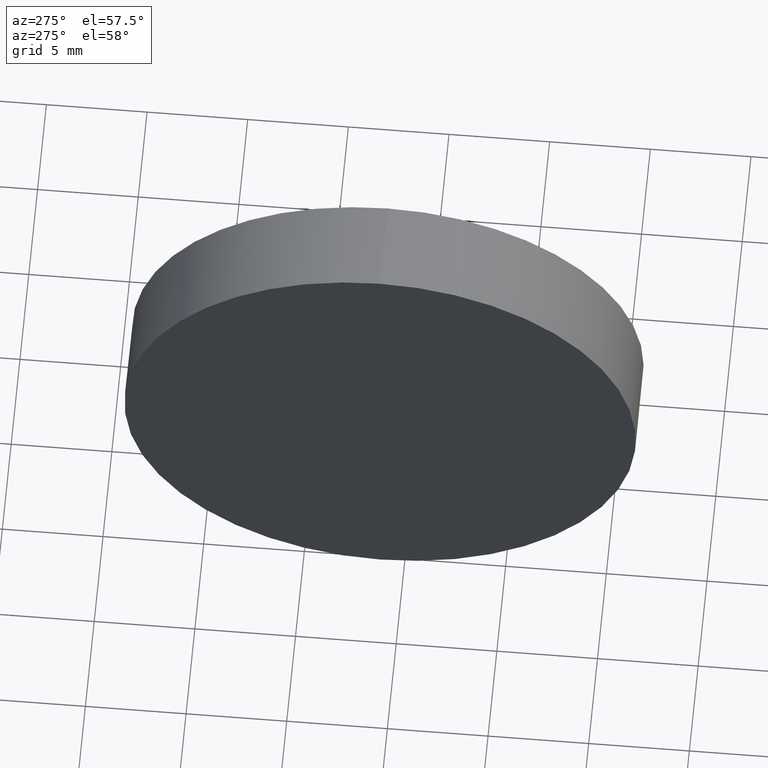
[diagram: clean part render]
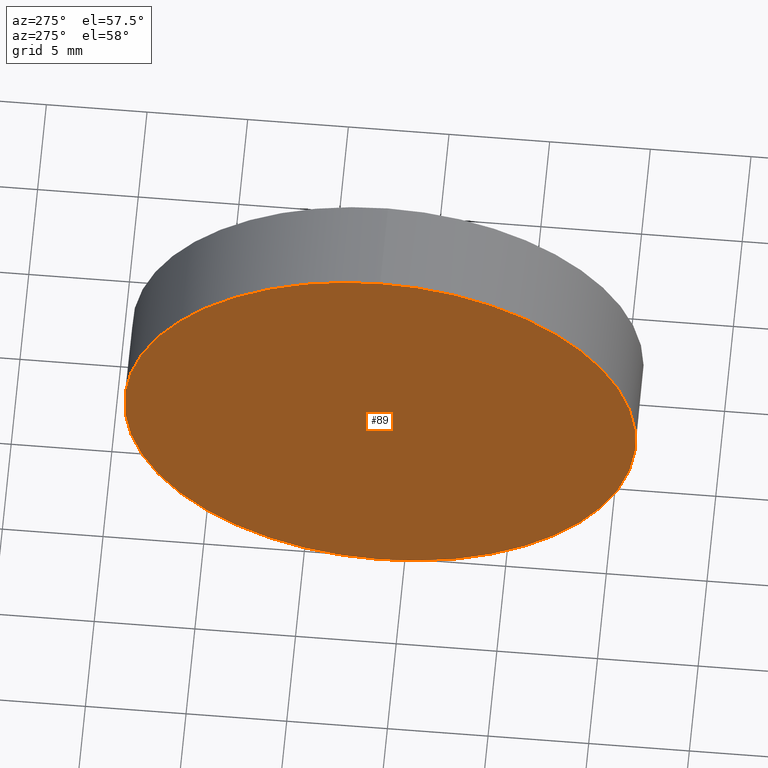
[diagram: same view with one face highlighted and labeled with its STEP entity id]
A machine part, auxiliary view. The second image highlights one B-rep face of the part: STEP entity #89.
In plain terms, the highlighted planar face has unit normal (1, 0, 0).
Its self-contained STEP definition (entity closure, byte-faithful):
#20 = AXIS2_PLACEMENT_3D ( 'NONE', #66, #178, #142 ) ;
#22 = AXIS2_PLACEMENT_3D ( 'NONE', #153, #54, #83 ) ;
#35 = PLANE ( 'NONE',  #110 ) ;
#41 = FACE_OUTER_BOUND ( 'NONE', #154, .T. ) ;
#47 = ORIENTED_EDGE ( 'NONE', *, *, #75, .T. ) ;
#54 = DIRECTION ( 'NONE',  ( -1.000000000000000000, -0.0000000000000000000, -0.0000000000000000000 ) ) ;
#65 = ORIENTED_EDGE ( 'NONE', *, *, #161, .T. ) ;
#66 = CARTESIAN_POINT ( 'NONE',  ( 119.5068341785477100, 71.19398908659370300, 0.0000000000000000000 ) ) ;
#75 = EDGE_CURVE ( 'NONE', #88, #124, #157, .T. ) ;
#83 = DIRECTION ( 'NONE',  ( 0.0000000000000000000, 0.0000000000000000000, 1.000000000000000000 ) ) ;
#88 = VERTEX_POINT ( 'NONE', #141 ) ;
#89 = ADVANCED_FACE ( 'NONE', ( #41 ), #35, .F. ) ;
#106 = CARTESIAN_POINT ( 'NONE',  ( 119.5068341785477100, 71.19398908659370300, 0.0000000000000000000 ) ) ;
#110 = AXIS2_PLACEMENT_3D ( 'NONE', #106, #120, #122 ) ;
#120 = DIRECTION ( 'NONE',  ( 1.000000000000000000, 0.0000000000000000000, 0.0000000000000000000 ) ) ;
#122 = DIRECTION ( 'NONE',  ( 0.0000000000000000000, 0.0000000000000000000, -1.000000000000000000 ) ) ;
#124 = VERTEX_POINT ( 'NONE', #127 ) ;
#127 = CARTESIAN_POINT ( 'NONE',  ( 119.5068341785477100, 71.19398908659370300, -12.70000000000000300 ) ) ;
#139 = CIRCLE ( 'NONE', #22, 12.70000000000000300 ) ;
#141 = CARTESIAN_POINT ( 'NONE',  ( 119.5068341785477100, 71.19398908659370300, 12.70000000000000300 ) ) ;
#142 = DIRECTION ( 'NONE',  ( 0.0000000000000000000, 0.0000000000000000000, 1.000000000000000000 ) ) ;
#153 = CARTESIAN_POINT ( 'NONE',  ( 119.5068341785477100, 71.19398908659370300, 0.0000000000000000000 ) ) ;
#154 = EDGE_LOOP ( 'NONE', ( #47, #65 ) ) ;
#157 = CIRCLE ( 'NONE', #20, 12.70000000000000300 ) ;
#161 = EDGE_CURVE ( 'NONE', #124, #88, #139, .T. ) ;
#178 = DIRECTION ( 'NONE',  ( -1.000000000000000000, -0.0000000000000000000, -0.0000000000000000000 ) ) ;